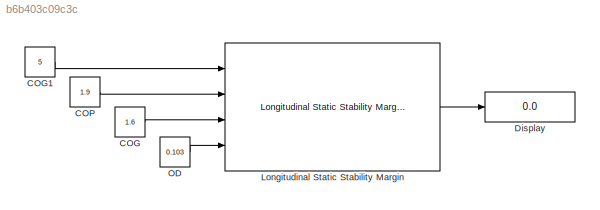
MODEL slx_b6b403c09c3c
KIND model
BLOCK [Constant] COG
  Value = 1.6
BLOCK [Constant] COG1
  Value = 5
BLOCK [Constant] COP
  Value = 1.9
BLOCK [Display] Display
  Decimation = 1
  Ports = [1]
BLOCK [Reference] Longitudinal Static Stability Margin  REF=rocket_angular_flight_library/Longitudinal Static Stability Margin
  Ports = [4, 1]
  SourceBlock = rocket_angular_flight_library/Longitudinal Static Stability Margin
  SourceType = SubSystem
BLOCK [Constant] OD
  Value = 0.103
LINE COG1:1 -> Longitudinal Static Stability Margin:1
LINE COG:1 -> Longitudinal Static Stability Margin:3
LINE COP:1 -> Longitudinal Static Stability Margin:2
LINE Longitudinal Static Stability Margin:1 -> Display:1
LINE OD:1 -> Longitudinal Static Stability Margin:4
